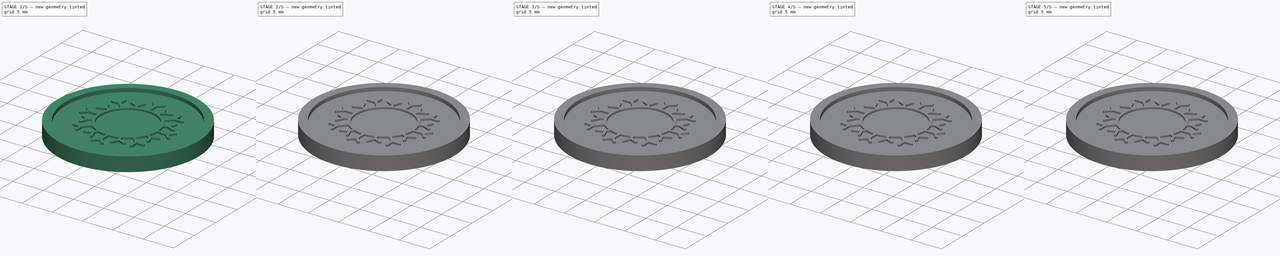
[diagram: build sequence overview — one tinted view per stage of 5, left to right]
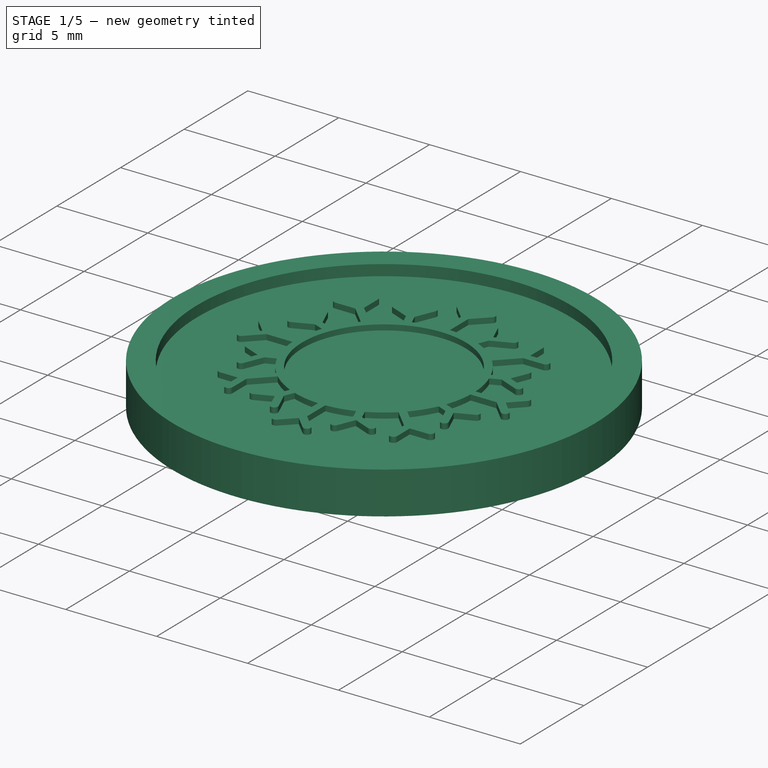
[diagram: stage 1 of 5 — iso view after this stage's code; geometry added in this stage tinted green]
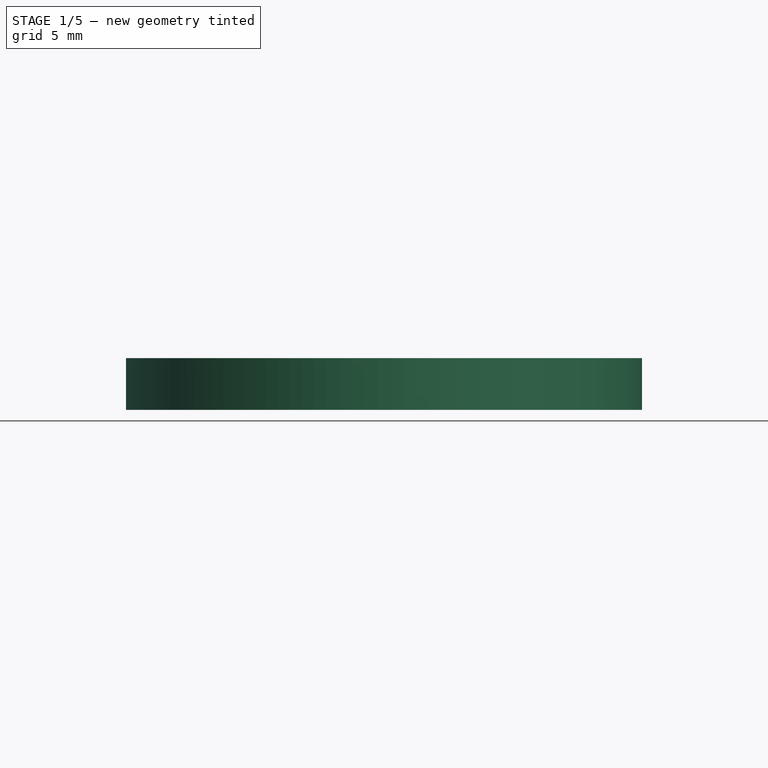
[diagram: stage 1 of 5 — front view after this stage's code; geometry added in this stage tinted green]
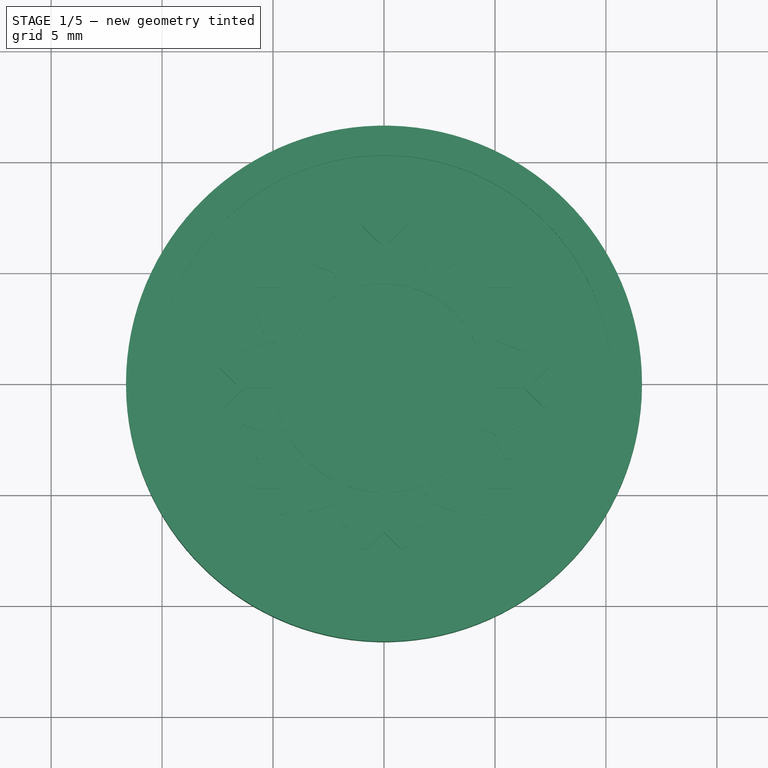
[diagram: stage 1 of 5 — top view after this stage's code; geometry added in this stage tinted green]
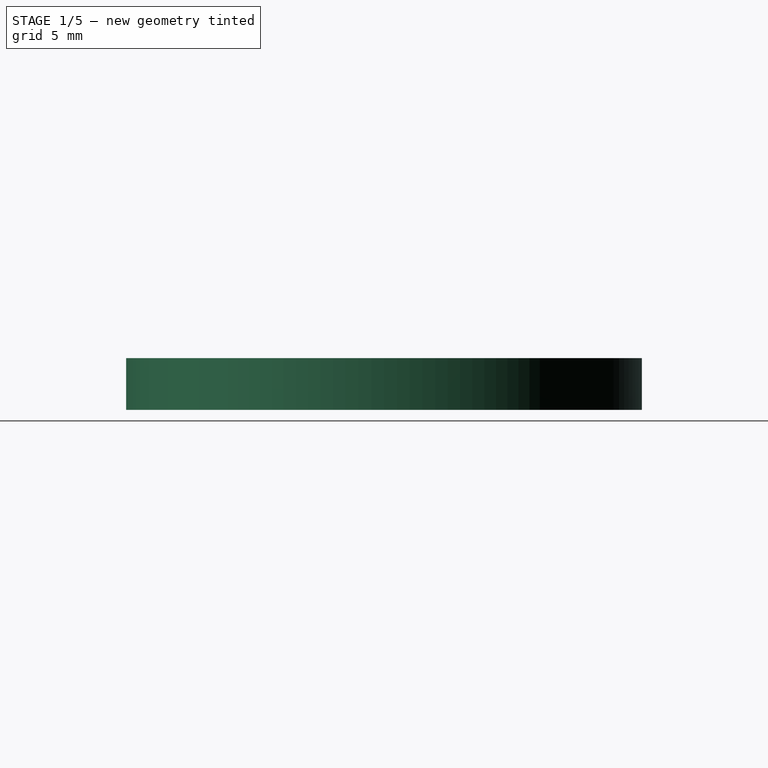
[diagram: stage 1 of 5 — right view after this stage's code; geometry added in this stage tinted green]
FCSTD DOCUMENT  (FreeCAD 0.18R16146 (Git))
Label: section77
License: All rights reserved
LicenseURL: http://en.wikipedia.org/wiki/All_rights_reserved
objects: Part::Part2DObjectPython×18, Part::Extrusion×18, Sketcher::SketchObject×3, PartDesign::Pad×2, App::DocumentObjectGroup×2, Part::Feature×2, PartDesign::Pocket×1, PartDesign::PolarPattern×1, PartDesign::Body×1
note: 49 computed .brp shape members not serialized (recipe doc carries the construction recipe); baked Part::Feature solids carry a one-line shape summary decoded from their .brp

FEATURE [Sketcher::SketchObject] Sketch
  MapMode = 5
  Support = -> [XY_Plane]
  sketch-geometry (1):
    g0: Circle CenterX=0 CenterY=0 CenterZ=0 NormalX=0 NormalY=0 NormalZ=1 AngleXU=0 Radius=11.625
  constraints (2):
    c: Coincident(g0,g-1)
    c: Diameter(g0) = 23.25
FEATURE [PartDesign::Pad] Pad
  Length = 2.33
  Length2 = 100
  Profile = -> Sketch
  Type = 0
FEATURE [Sketcher::SketchObject] Sketch001
  MapMode = 5
  Placement = pos=(0,0,2.33) rot=(0,0,1;0rad)
  Support = -> [Pad]
  sketch-geometry (1):
    g0: Circle CenterX=0 CenterY=0 CenterZ=0 NormalX=0 NormalY=0 NormalZ=1 AngleXU=0 Radius=10.2842
  constraints (1):
    c: Coincident(g0,g-1)
FEATURE [PartDesign::Pocket] Pocket
  BaseFeature = -> Pad
  Length = 0.6
  Length2 = 100
  Profile = -> Sketch001
  Type = 0
FEATURE [PartDesign::Pad] Pad001
  BaseFeature = -> Pocket
  Length = 0.3
  Length2 = 100
  Profile = -> Sketch002
  Type = 0
FEATURE [PartDesign::PolarPattern] PolarPattern
  Angle = 360
  Axis = -> Sketch002 [N_Axis]
  BaseFeature = -> Pad001
  Occurrences = 8
  Originals = -> [Pad001]
FEATURE [PartDesign::Body] Body
  Group = -> [Sketch,Pad,Sketch001,Pocket,Sketch002,Pad001,PolarPattern]
  Origin = -> Origin
  Placement = pos=(0,0,-2) rot=(0,0,1;0rad)
  Tip = -> PolarPattern
note: 18 file-system paths scrubbed to <path> (originals preserved in the JSON sidecar)
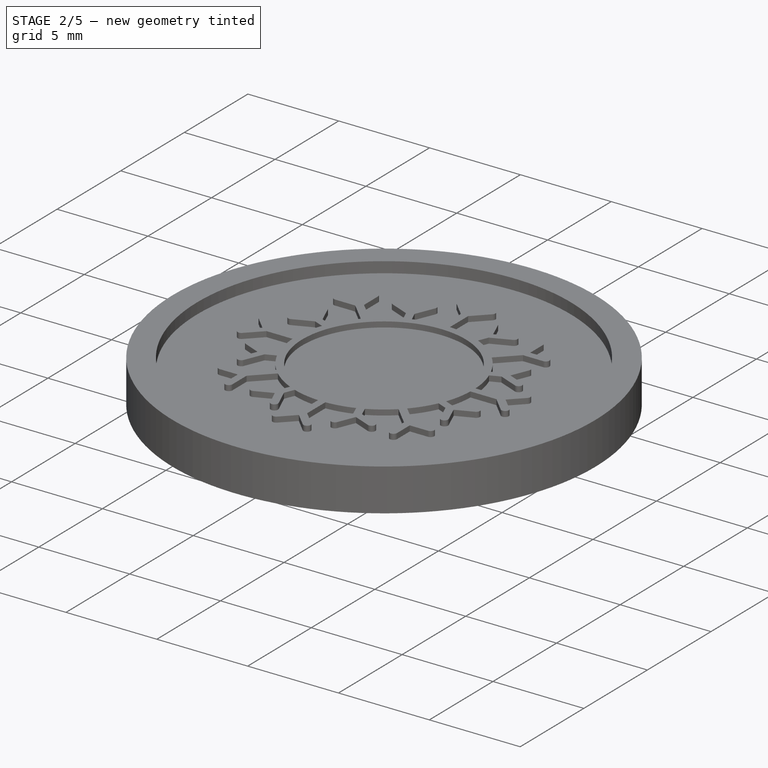
[diagram: stage 2 of 5 — iso view after this stage's code; geometry added in this stage tinted green]
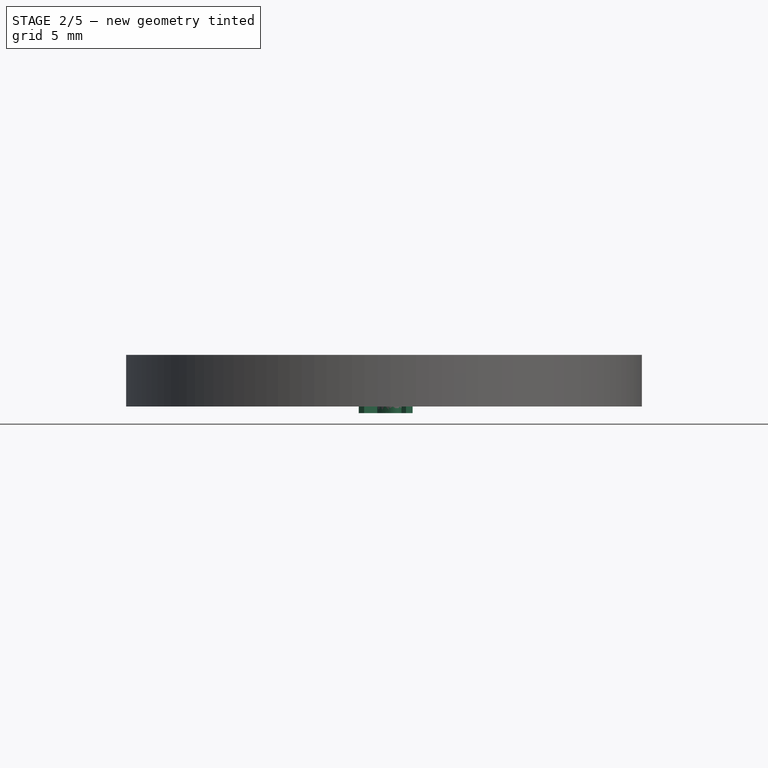
[diagram: stage 2 of 5 — front view after this stage's code; geometry added in this stage tinted green]
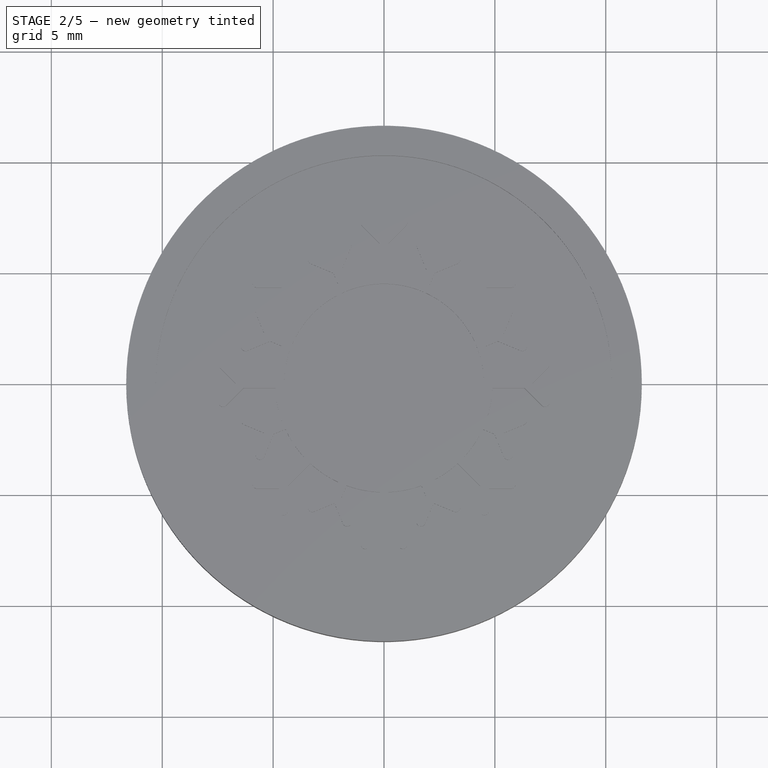
[diagram: stage 2 of 5 — top view after this stage's code; geometry added in this stage tinted green]
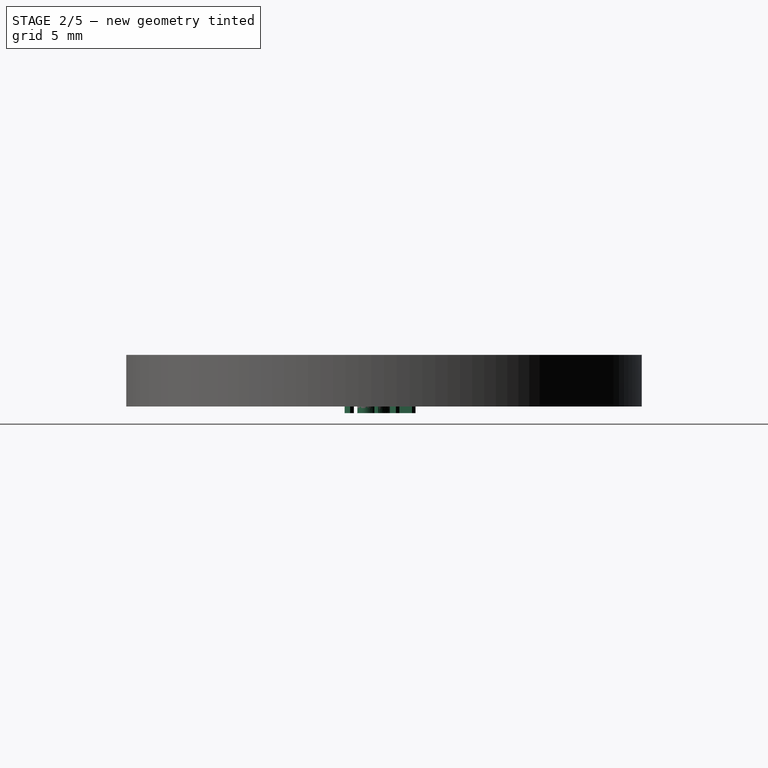
[diagram: stage 2 of 5 — right view after this stage's code; geometry added in this stage tinted green]
FEATURE [Part::Part2DObjectPython] ShapeString013  # Draft 2D object (typed FeaturePython)
  FontFile = <path>
  Size = 2
  String = D
  Tracking = 0
FEATURE [Part::Extrusion] Extrusion013
  Base = -> ShapeString013
  Dir = (0,0,0.3)
  DirMode = 0
  FaceMakerClass = Part::FaceMakerBullseye
  LengthFwd = 0
  LengthRev = 0
  Placement = pos=(-6.42788,-7.66044,0) rot=(0,0,-1;0.698132rad)
  Solid = false
  Symmetric = false
FEATURE [Part::Part2DObjectPython] ShapeString014  # Draft 2D object (typed FeaturePython)
  FontFile = <path>
  Size = 2
  String = -
  Tracking = 0
FEATURE [Part::Extrusion] Extrusion014
  Base = -> ShapeString014
  Dir = (0,0,0.3)
  DirMode = 0
  FaceMakerClass = Part::FaceMakerBullseye
  LengthFwd = 0
  LengthRev = 0
  Placement = pos=(-4.61749,-8.87011,0) rot=(0,0,-1;0.479966rad)
  Solid = false
  Symmetric = false
FEATURE [Part::Part2DObjectPython] ShapeString015  # Draft 2D object (typed FeaturePython)
  FontFile = <path>
  Size = 2
  String = 1
  Tracking = 0
FEATURE [Part::Extrusion] Extrusion015
  Base = -> ShapeString015
  Dir = (0,0,0.3)
  DirMode = 0
  FaceMakerClass = Part::FaceMakerBullseye
  LengthFwd = 0
  LengthRev = 0
  Placement = pos=(-2.58819,-9.65926,0) rot=(0,0,-1;0.261799rad)
  Solid = false
  Symmetric = false
FEATURE [Part::Part2DObjectPython] ShapeString016  # Draft 2D object (typed FeaturePython)
  FontFile = <path>
  Size = 2
  String = 9
  Tracking = 0
FEATURE [Part::Extrusion] Extrusion016
  Base = -> ShapeString016
  Dir = (0,0,0.3)
  DirMode = 0
  FaceMakerClass = Part::FaceMakerBullseye
  LengthFwd = 0
  LengthRev = 0
  Placement = pos=(-0.436194,-9.99048,0) rot=(0,0,-1;0.043633rad)
  Solid = false
  Symmetric = false
FEATURE [App::DocumentObjectGroup] FcString001
  Group = -> [ShapeString009,Extrusion009,ShapeString010,Extrusion010,ShapeString011,Extrusion011,ShapeString012,Extrusion012,ShapeString013,Extrusion013,ShapeString014,Extrusion014,ShapeString015,Extrusion015,ShapeString016,Extrusion016]
FEATURE [Part::Feature] Shape001
  shape: bbox 11.14 x 9.944 x 0.3 mm, 115 faces, 8 solids (baked)
FEATURE [Part::Part2DObjectPython] ShapeString017  # Draft 2D object (typed FeaturePython)
  FontFile = <path>
  Placement = pos=(-1.6,0.4,0) rot=(0,0,1;-0.698132rad)
  Size = 2
  String = vs.
  Tracking = 0
FEATURE [Part::Extrusion] Extrude
  Base = -> ShapeString017
  Dir = (0,0,-1)
  DirMode = 0
  FaceMakerClass = Part::FaceMakerBullseye
  LengthFwd = 0.3
  LengthRev = 0
  Solid = false
  Symmetric = false
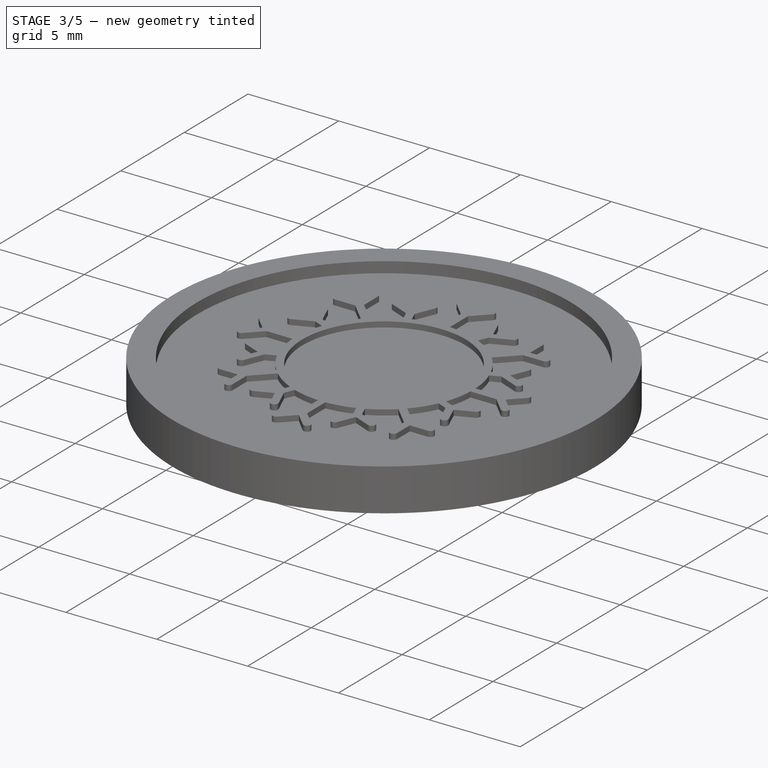
[diagram: stage 3 of 5 — iso view after this stage's code; geometry added in this stage tinted green]
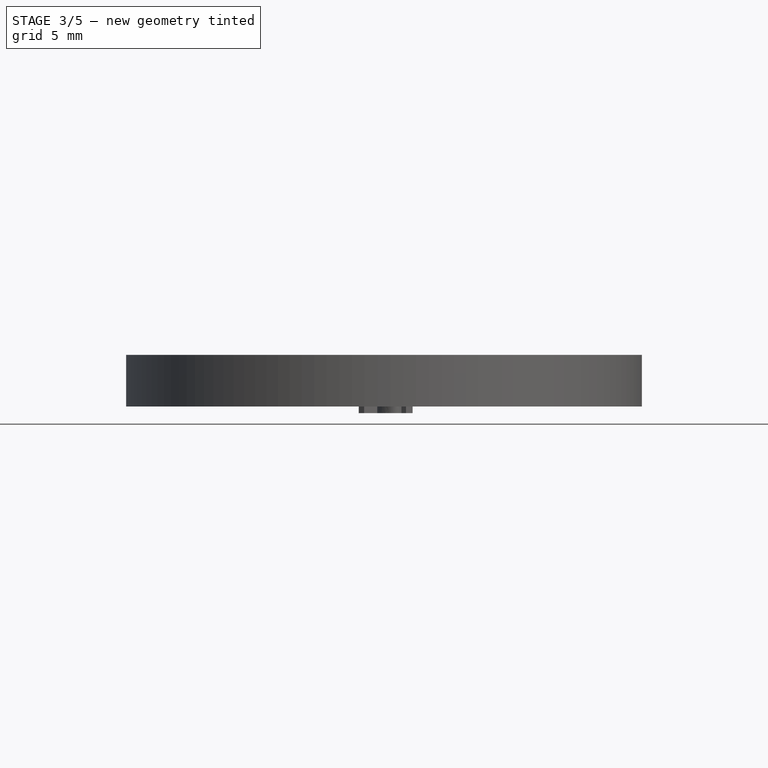
[diagram: stage 3 of 5 — front view after this stage's code; geometry added in this stage tinted green]
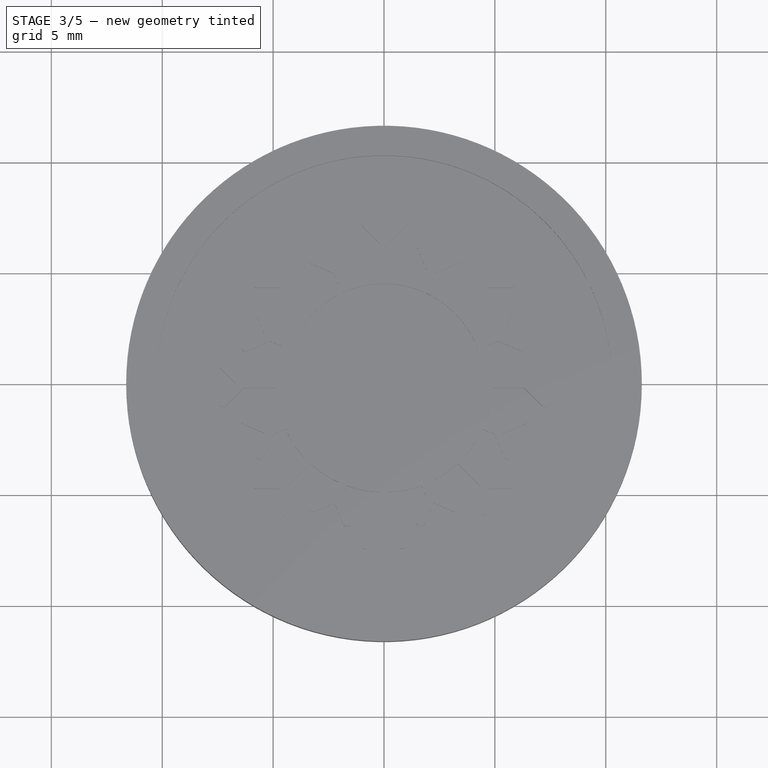
[diagram: stage 3 of 5 — top view after this stage's code; geometry added in this stage tinted green]
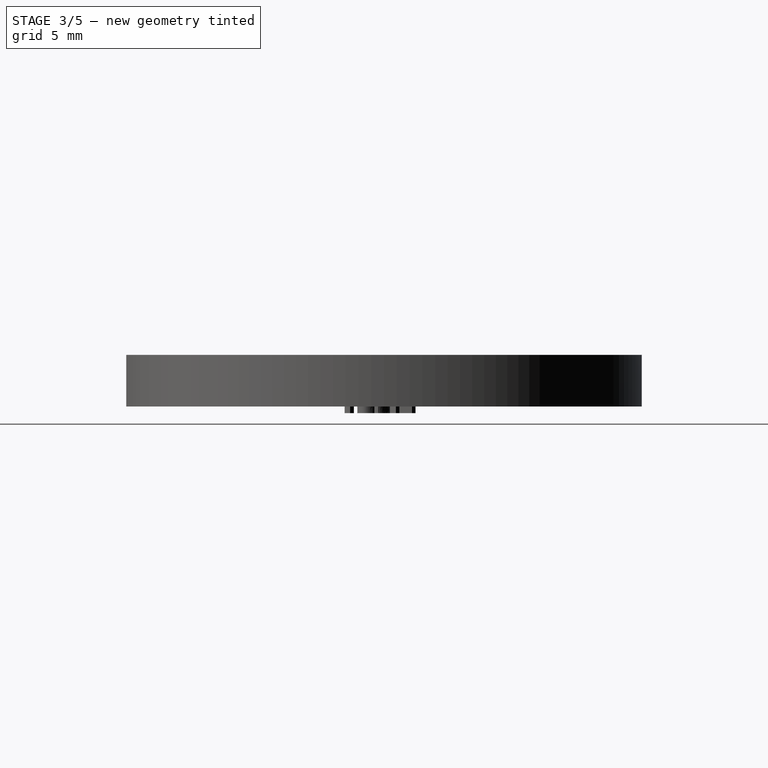
[diagram: stage 3 of 5 — right view after this stage's code; geometry added in this stage tinted green]
FEATURE [App::DocumentObjectGroup] FcString
  Group = -> [ShapeString,Extrusion,ShapeString001,Extrusion001,ShapeString002,Extrusion002,ShapeString003,Extrusion003,ShapeString004,Extrusion004,ShapeString005,Extrusion005,ShapeString006,Extrusion006,ShapeString007,Extrusion007,ShapeString008,Extrusion008]
FEATURE [Part::Feature] Shape
  shape: bbox 9.621 x 11.65 x 0.3 mm, 158 faces, 10 solids (baked)
FEATURE [Part::Part2DObjectPython] ShapeString009  # Draft 2D object (typed FeaturePython)
  FontFile = <path>
  Size = 2
  String = C
  Tracking = 0
FEATURE [Part::Extrusion] Extrusion009
  Base = -> ShapeString009
  Dir = (0,0,0.3)
  DirMode = 0
  FaceMakerClass = Part::FaceMakerBullseye
  LengthFwd = 0
  LengthRev = 0
  Placement = pos=(-10,0,0) rot=(0,0,-1;1.5708rad)
  Solid = false
  Symmetric = false
FEATURE [Part::Part2DObjectPython] ShapeString010  # Draft 2D object (typed FeaturePython)
  FontFile = <path>
  Size = 2
  String = O
  Tracking = 0
FEATURE [Part::Extrusion] Extrusion010
  Base = -> ShapeString010
  Dir = (0,0,0.3)
  DirMode = 0
  FaceMakerClass = Part::FaceMakerBullseye
  LengthFwd = 0
  LengthRev = 0
  Placement = pos=(-9.76296,-2.1644,0) rot=(0,0,-1;1.35263rad)
  Solid = false
  Symmetric = false
FEATURE [Part::Part2DObjectPython] ShapeString011  # Draft 2D object (typed FeaturePython)
  FontFile = <path>
  Size = 2
  String = V
  Tracking = 0
FEATURE [Part::Extrusion] Extrusion011
  Base = -> ShapeString011
  Dir = (0,0,0.3)
  DirMode = 0
  FaceMakerClass = Part::FaceMakerBullseye
  LengthFwd = 0
  LengthRev = 0
  Placement = pos=(-9.06308,-4.22618,0) rot=(0,0,-1;1.13446rad)
  Solid = false
  Symmetric = false
FEATURE [Part::Part2DObjectPython] ShapeString012  # Draft 2D object (typed FeaturePython)
  FontFile = <path>
  Size = 2
  String = I
  Tracking = 0
FEATURE [Part::Extrusion] Extrusion012
  Base = -> ShapeString012
  Dir = (0,0,0.3)
  DirMode = 0
  FaceMakerClass = Part::FaceMakerBullseye
  LengthFwd = 0
  LengthRev = 0
  Placement = pos=(-7.93353,-6.08761,0) rot=(0,0,-1;0.916298rad)
  Solid = false
  Symmetric = false
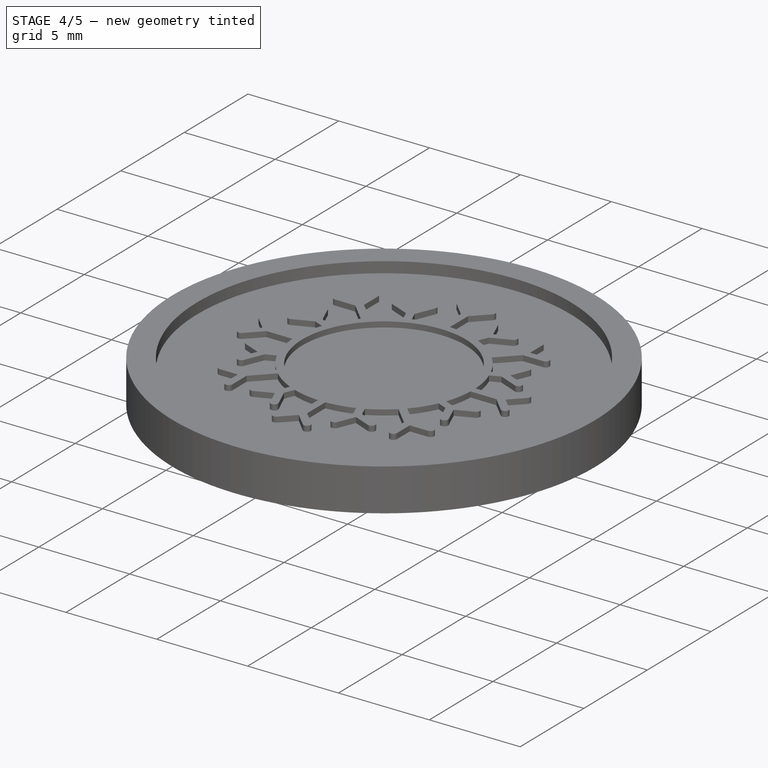
[diagram: stage 4 of 5 — iso view after this stage's code; geometry added in this stage tinted green]
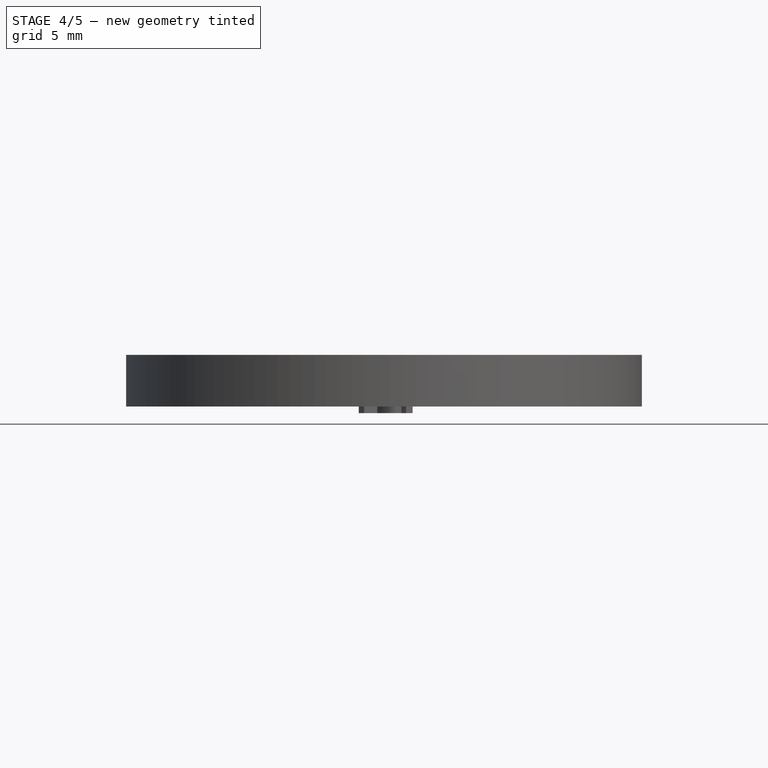
[diagram: stage 4 of 5 — front view after this stage's code; geometry added in this stage tinted green]
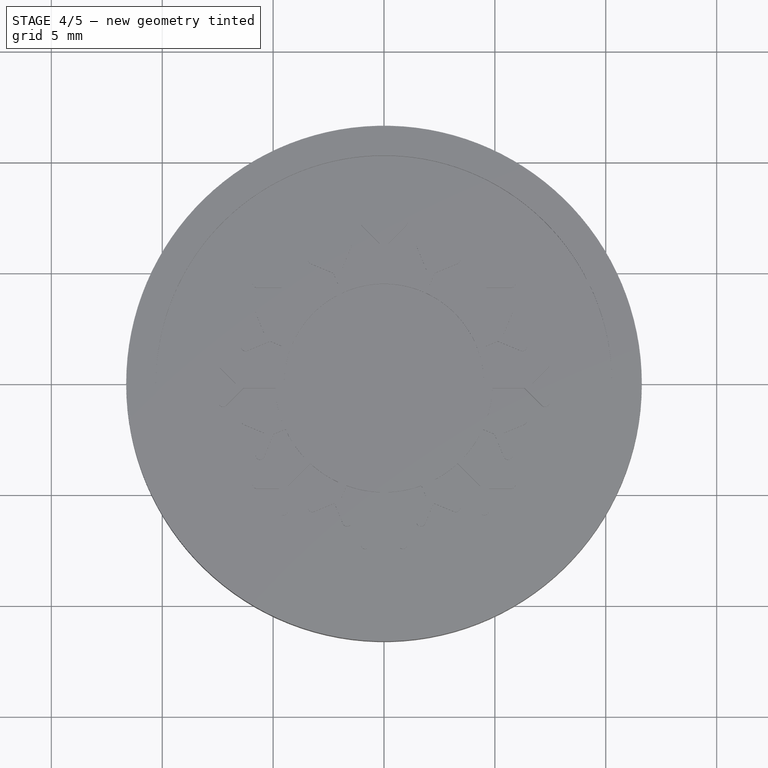
[diagram: stage 4 of 5 — top view after this stage's code; geometry added in this stage tinted green]
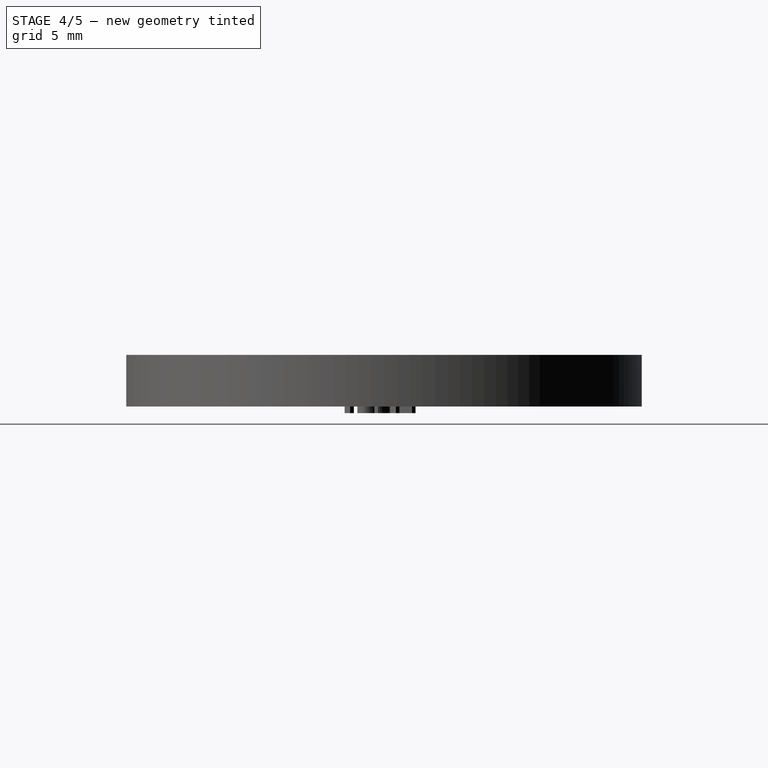
[diagram: stage 4 of 5 — right view after this stage's code; geometry added in this stage tinted green]
FEATURE [Part::Part2DObjectPython] ShapeString004  # Draft 2D object (typed FeaturePython)
  FontFile = <path>
  Size = 2
  String = i
  Tracking = 0
FEATURE [Part::Extrusion] Extrusion004
  Base = -> ShapeString004
  Dir = (0,0,0.3)
  DirMode = 0
  FaceMakerClass = Part::FaceMakerBullseye
  LengthFwd = 0
  LengthRev = 0
  Placement = pos=(5.81853,5.70677,0) rot=(0,0,-1;0.969628rad)
  Solid = false
  Symmetric = false
FEATURE [Part::Part2DObjectPython] ShapeString005  # Draft 2D object (typed FeaturePython)
  FontFile = <path>
  Size = 2
  String = t
  Tracking = 0
FEATURE [Part::Extrusion] Extrusion005
  Base = -> ShapeString005
  Dir = (0,0,0.3)
  DirMode = 0
  FaceMakerClass = Part::FaceMakerBullseye
  LengthFwd = 0
  LengthRev = 0
  Placement = pos=(4.6097,6.7211,0) rot=(0,0,-1;0.775703rad)
  Solid = false
  Symmetric = false
FEATURE [Part::Part2DObjectPython] ShapeString006  # Draft 2D object (typed FeaturePython)
  FontFile = <path>
  Size = 2
  String = c
  Tracking = 0
FEATURE [Part::Extrusion] Extrusion006
  Base = -> ShapeString006
  Dir = (0,0,0.3)
  DirMode = 0
  FaceMakerClass = Part::FaceMakerBullseye
  LengthFwd = 0
  LengthRev = 0
  Placement = pos=(3.22806,7.48346,0) rot=(0,0,-1;0.581778rad)
  Solid = false
  Symmetric = false
FEATURE [Part::Part2DObjectPython] ShapeString007  # Draft 2D object (typed FeaturePython)
  FontFile = <path>
  Size = 2
  String = e
  Tracking = 0
FEATURE [Part::Extrusion] Extrusion007
  Base = -> ShapeString007
  Dir = (0,0,0.3)
  DirMode = 0
  FaceMakerClass = Part::FaceMakerBullseye
  LengthFwd = 0
  LengthRev = 0
  Placement = pos=(1.7254,7.96527,0) rot=(0,0,-1;0.387852rad)
  Solid = false
  Symmetric = false
FEATURE [Part::Part2DObjectPython] ShapeString008  # Draft 2D object (typed FeaturePython)
  FontFile = <path>
  Size = 2
  String = S
  Tracking = 0
FEATURE [Part::Extrusion] Extrusion008
  Base = -> ShapeString008
  Dir = (0,0,0.3)
  DirMode = 0
  FaceMakerClass = Part::FaceMakerBullseye
  LengthFwd = 0
  LengthRev = 0
  Placement = pos=(0.158052,8.14847,0) rot=(0,0,-1;0.193927rad)
  Solid = false
  Symmetric = false
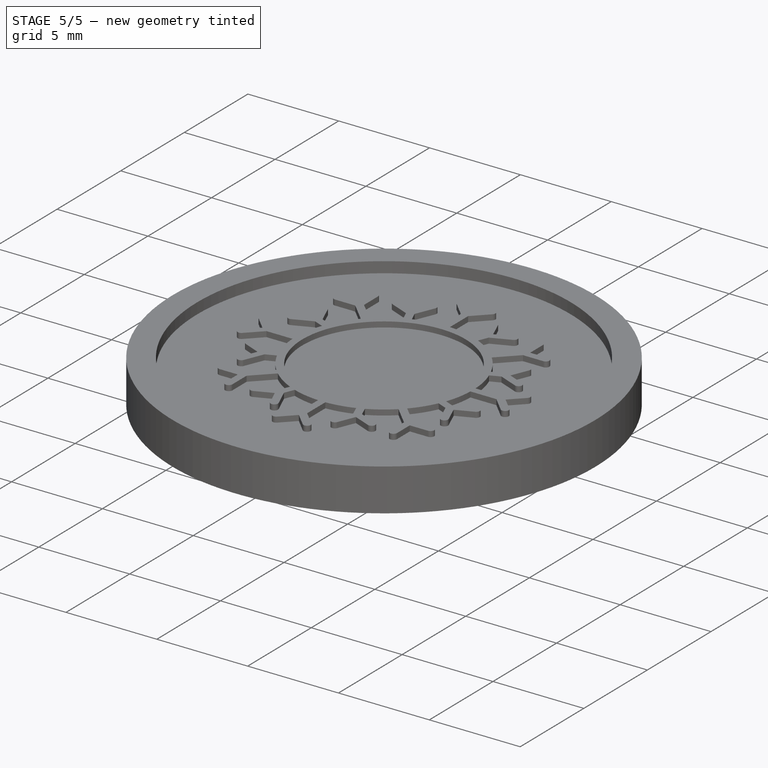
[diagram: stage 5 of 5 — iso view after this stage's code; geometry added in this stage tinted green]
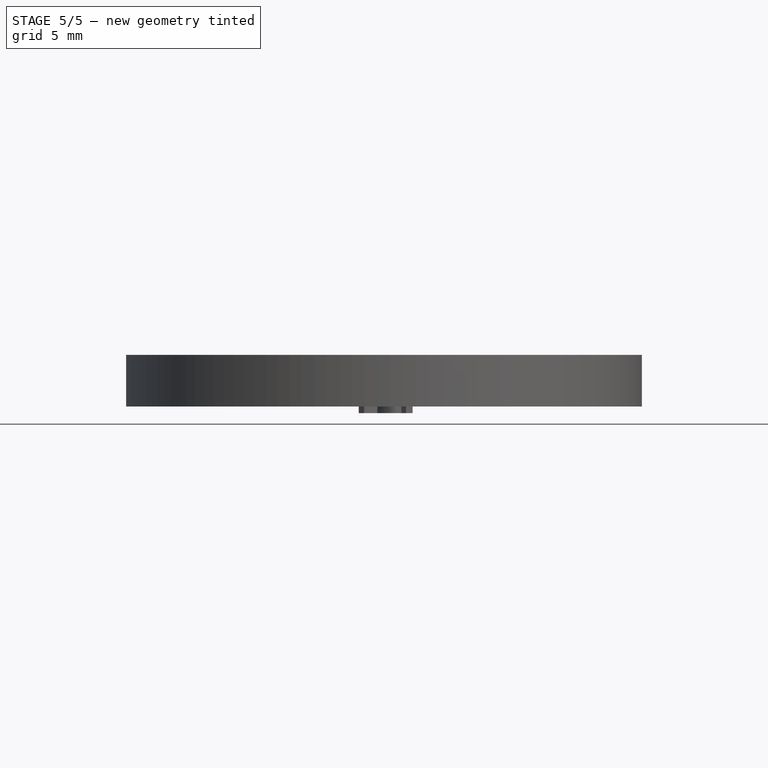
[diagram: stage 5 of 5 — front view after this stage's code; geometry added in this stage tinted green]
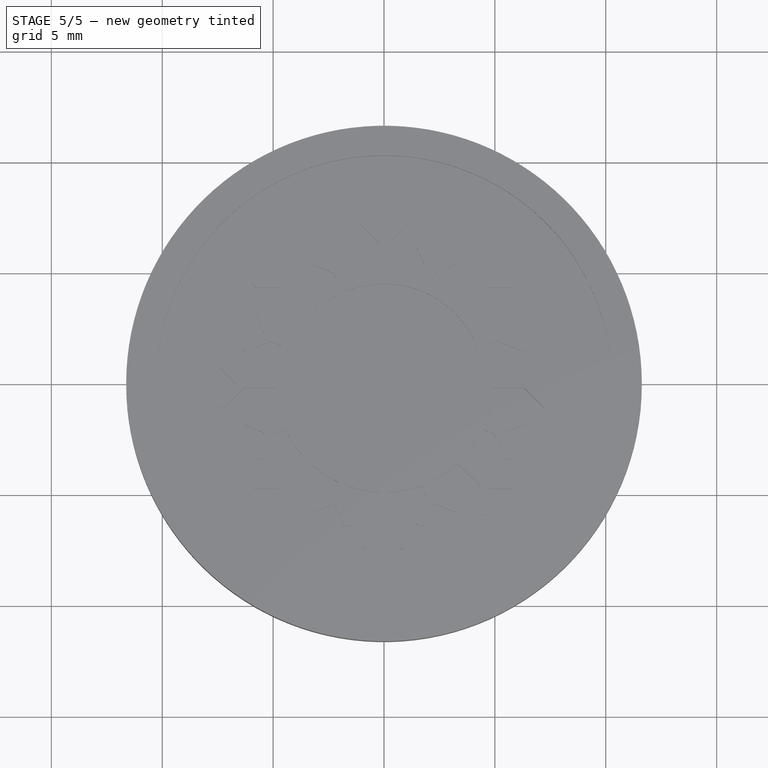
[diagram: stage 5 of 5 — top view after this stage's code; geometry added in this stage tinted green]
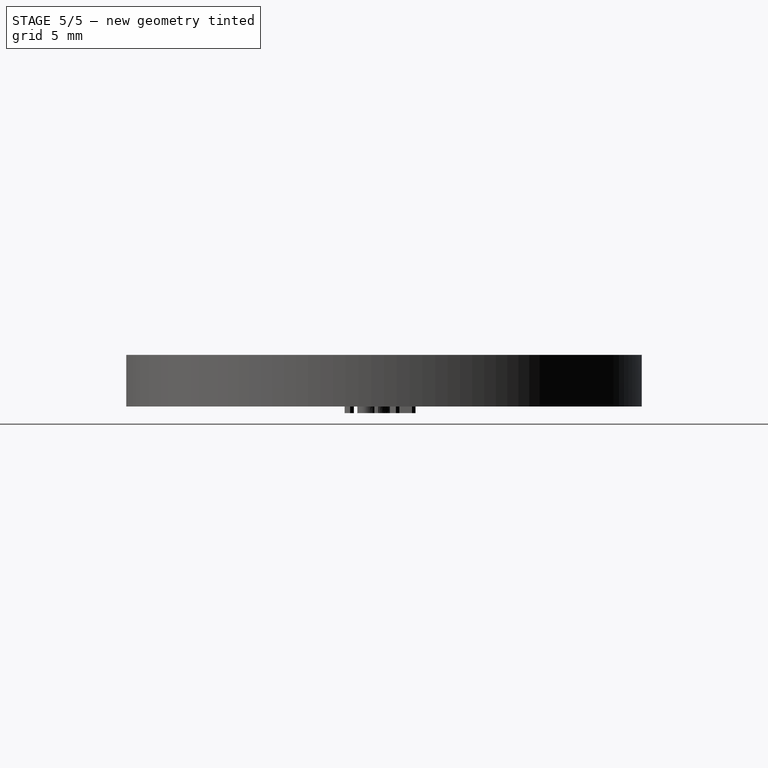
[diagram: stage 5 of 5 — right view after this stage's code; geometry added in this stage tinted green]
FEATURE [Sketcher::SketchObject] Sketch002
  MapMode = 5
  Placement = pos=(0,0,1.73) rot=(0,0,1;0rad)
  Support = -> [Pocket]
  expr: Constraints[43] = Constraints.w
  expr: Constraints[38] = Constraints.w
  sketch-geometry (23):
    g0: LineSegment StartX=-0.2 StartY=4.49555 StartZ=0 EndX=-0.2 EndY=6.32626 EndZ=0
    g1: LineSegment StartX=-0.2 StartY=6.32626 StartZ=0 EndX=-0.989949 EndY=7.11621 EndZ=0
    g2: LineSegment StartX=-0.707107 StartY=7.39905 StartZ=0 EndX=0 EndY=6.69195 EndZ=0
    g3: LineSegment StartX=0 StartY=6.69195 StartZ=0 EndX=0.707107 EndY=7.39905 EndZ=0
    g4: LineSegment StartX=0.989949 StartY=7.11621 StartZ=0 EndX=0.2 EndY=6.32626 EndZ=0
    g5: LineSegment StartX=0.2 StartY=6.32626 StartZ=0 EndX=0.2 EndY=4.89592 EndZ=0
    g6: ArcOfCircle CenterX=0.848528 CenterY=7.25763 CenterZ=0 NormalX=0 NormalY=0 NormalZ=1 AngleXU=0 Radius=0.2 StartAngle=5.49779 EndAngle=8.63938
    g7: ArcOfCircle CenterX=-0.848528 CenterY=7.25763 CenterZ=0 NormalX=0 NormalY=0 NormalZ=1 AngleXU=0 Radius=0.2 StartAngle=0.785398 EndAngle=3.92699
    g8: ArcOfCircle CenterX=0 CenterY=0 CenterZ=0 NormalX=0 NormalY=0 NormalZ=1 AngleXU=0 Radius=4.5 StartAngle=0.477043 EndAngle=1.61526
    g9: LineSegment StartX=1.68881 StartY=4.59977 StartZ=0 EndX=1.90946 EndY=5.13248 EndZ=0
    g10: LineSegment StartX=1.90946 StartY=5.13248 StartZ=0 EndX=1.48195 EndY=6.1646 EndZ=0
    g11: LineSegment StartX=1.8515 StartY=6.31767 StartZ=0 EndX=2.23418 EndY=5.39379 EndZ=0
    g12: LineSegment StartX=2.23418 StartY=5.39379 StartZ=0 EndX=3.15806 EndY=5.77647 EndZ=0
    g13: LineSegment StartX=3.31113 StartY=5.40692 StartZ=0 EndX=2.27902 EndY=4.9794 EndZ=0
    g14: LineSegment StartX=2.27902 StartY=4.9794 StartZ=0 EndX=2.05836 EndY=4.4467 EndZ=0
    g15: ArcOfCircle CenterX=3.2346 CenterY=5.5917 CenterZ=0 NormalX=0 NormalY=0 NormalZ=1 AngleXU=0 Radius=0.2 StartAngle=5.10509 EndAngle=8.24668
    g16: ArcOfCircle CenterX=1.66672 CenterY=6.24113 CenterZ=0 NormalX=0 NormalY=0 NormalZ=1 AngleXU=0 Radius=0.2 StartAngle=0.392699 EndAngle=3.53429
    g17: LineSegment [constr] StartX=1.90946 StartY=5.13248 StartZ=0 EndX=2.27902 EndY=4.9794 EndZ=0
    g18: LineSegment [constr] StartX=-0.2 StartY=6.32626 StartZ=0 EndX=0.2 EndY=6.32626 EndZ=0
    g19: ArcOfCircle CenterX=0 CenterY=0 CenterZ=0 NormalX=0 NormalY=0 NormalZ=1 AngleXU=0 Radius=4.9 StartAngle=1.21892 EndAngle=1.52997
    g20: ArcOfCircle CenterX=0 CenterY=0 CenterZ=0 NormalX=0 NormalY=0 NormalZ=1 AngleXU=0 Radius=4.9 StartAngle=0.477043 EndAngle=1.13727
    g21: LineSegment StartX=4.35295 StartY=2.24986 StartZ=0 EndX=3.9976 EndY=2.0662 EndZ=0
    g22: LineSegment [constr] StartX=2.09424 StartY=5.05594 StartZ=0 EndX=0 EndY=0 EndZ=0
  constraints (60):
    c: Vertical(g0)
    c: Coincident(g0,g1)
    c: PointOnObject(g2,g-2)
    c: Coincident(g2,g3)
    c: Coincident(g4,g5)
    c: Vertical(g5)
    c: Tangent(g2,g7) = 1.5708
    c: Tangent(g1,g7) = 1.5708
    c: Tangent(g3,g6) = 1.5708
    c: Tangent(g4,g6) = 1.5708
    c: Angle(g3,g2) = 1.5708
    c: Distance(g2,g1) = 0.4  'w'
    c: Distance(g3,g4) = 0.4
    c: Parallel(g1,g2)
    c: Parallel(g3,g4)
    c: Angle(g2,g-2) = 2.35619
    c: Distance(g2,g2) = 1  'len'
    c: Coincident(g8,g-1)
    c: Coincident(g9,g10)
    c: Coincident(g11,g12)
    c: Coincident(g13,g14)
    c: Tangent(g11,g16) = 1.5708
    c: Tangent(g10,g16) = 1.5708
    c: Tangent(g12,g15) = 1.5708
    c: Tangent(g13,g15) = 1.5708
    c: Angle(g12,g11) = 1.5708
    c: Distance(g11,g10) = 0.4  'w'
    c: Distance(g12,g13) = 0.4
    c: Parallel(g10,g11)
    c: Parallel(g12,g13)
    c: Equal(g2,g11) = 1.5  'len'
    c: Equal(g3,g12) = 1.5
    c: Parallel(g9,g14)
    c: Angle(g14,g13) = 2.35619
    c: Equal(g10,g13)
    c: Equal(g12,g11)
    c: Coincident(g17,g9)
    c: Coincident(g17,g13)
    c: Distance(g17) = 0.4
    c: Angle(g9,g5) = 0.392699
    c: Coincident(g18,g0)
    c: Coincident(g18,g4)
    c: Horizontal(g18)
    c: Distance(g18) = 0.4
    c: Coincident(g8,g0)
    c: Coincident(g19,g8)
    c: Coincident(g19,g5)
    c: Coincident(g19,g9)
    c: Radius(g8) = 4.5
    c: Radius(g19) = 4.9
    c: Coincident(g20,g8)
    c: Coincident(g20,g14)
    c: Coincident(g21,g20)
    c: Coincident(g21,g8)
    c: Perpendicular(g20,g21)
    c: Coincident(g22,g8)
    c: Parallel(g9,g22)
    c: PointOnObject(g22,g17)
    c: Distance(g22,g13) = 0.2
    c: Radius(g20) = 4.9
FEATURE [Part::Part2DObjectPython] ShapeString  # Draft 2D object (typed FeaturePython)
  FontFile = <path>
  Size = 2
  String = 7
  Tracking = 0
FEATURE [Part::Extrusion] Extrusion
  Base = -> ShapeString
  Dir = (0,0,0.3)
  DirMode = 0
  FaceMakerClass = Part::FaceMakerBullseye
  LengthFwd = 0
  LengthRev = 0
  Placement = pos=(8.15,0,0) rot=(0,0,-1;1.74533rad)
  Solid = false
  Symmetric = false
FEATURE [Part::Part2DObjectPython] ShapeString001  # Draft 2D object (typed FeaturePython)
  FontFile = <path>
  Size = 2
  String = 7
  Tracking = 0
FEATURE [Part::Extrusion] Extrusion001
  Base = -> ShapeString001
  Dir = (0,0,0.3)
  DirMode = 0
  FaceMakerClass = Part::FaceMakerBullseye
  LengthFwd = 0
  LengthRev = 0
  Placement = pos=(7.99723,1.5706,0) rot=(0,0,-1;1.5514rad)
  Solid = false
  Symmetric = false
FEATURE [Part::Part2DObjectPython] ShapeString002  # Draft 2D object (typed FeaturePython)
  FontFile = <path>
  Size = 2
  String = n
  Tracking = 0
FEATURE [Part::Extrusion] Extrusion002
  Base = -> ShapeString002
  Dir = (0,0,0.3)
  DirMode = 0
  FaceMakerClass = Part::FaceMakerBullseye
  LengthFwd = 0
  LengthRev = 0
  Placement = pos=(7.54465,3.08233,0) rot=(0,0,-1;1.35748rad)
  Solid = false
  Symmetric = false
FEATURE [Part::Part2DObjectPython] ShapeString003  # Draft 2D object (typed FeaturePython)
  FontFile = <path>
  Size = 2
  String = o
  Tracking = 0
FEATURE [Part::Extrusion] Extrusion003
  Base = -> ShapeString003
  Dir = (0,0,0.3)
  DirMode = 0
  FaceMakerClass = Part::FaceMakerBullseye
  LengthFwd = 0
  LengthRev = 0
  Placement = pos=(6.80923,4.47849,0) rot=(0,0,-1;1.16355rad)
  Solid = false
  Symmetric = false
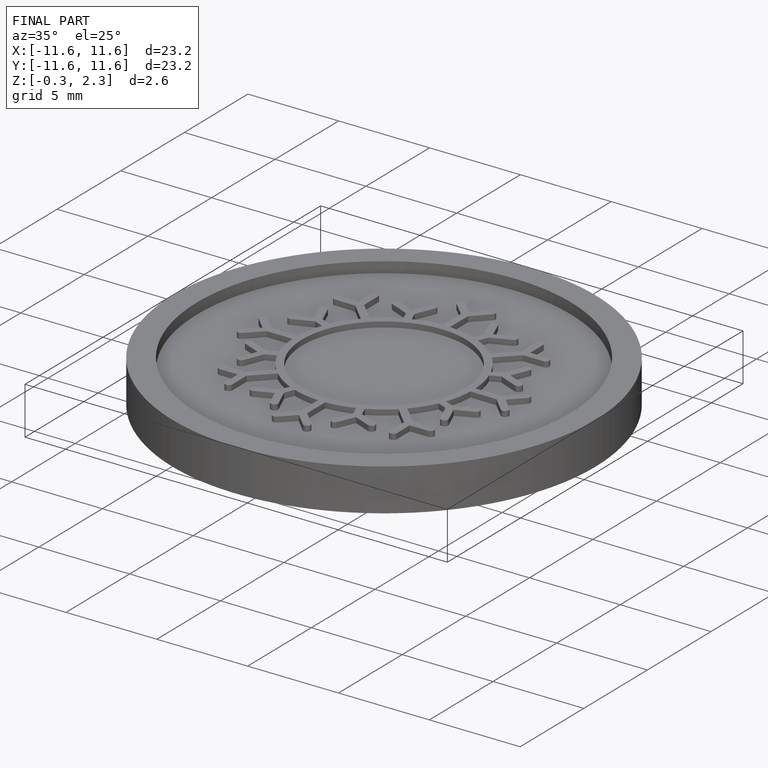
[diagram: finished part — iso view with bounding-box wireframe]
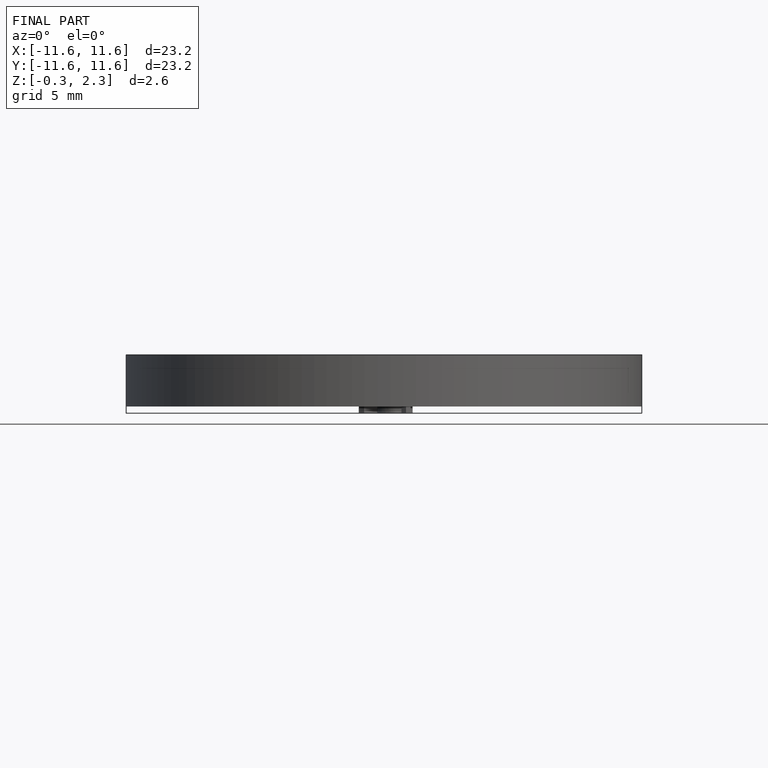
[diagram: finished part — front view with bounding-box wireframe]
